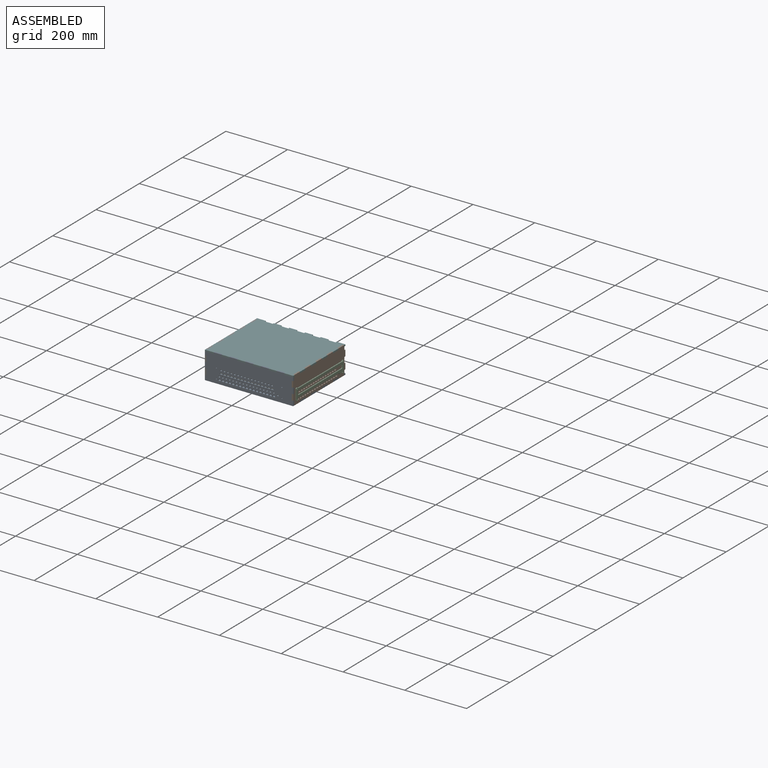
[diagram: assembled view]
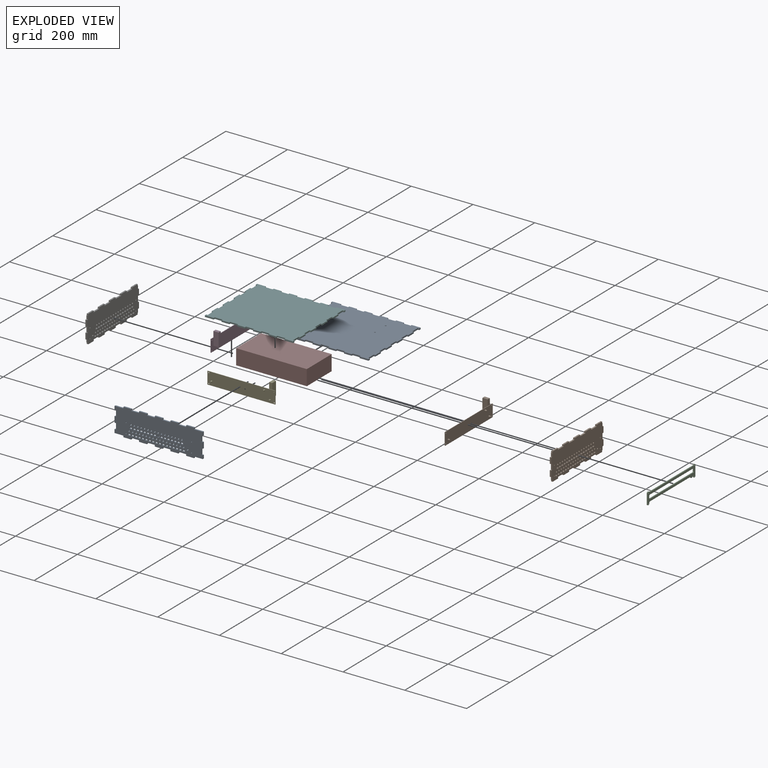
[diagram: exploded view]
GUIDED TOUR — MATED ASSEMBLY (Onshape document acc4b3c0ff918c68003eef7a, AutoMate assembly acc4b3c0ff918c68003eef7a_37771988faa3b58f72059277_893549a14eb29897f5967f4f_default)

This assembly has 10 components, labeled P0..P9 below (a component is one placed occurrence of a part; the same part can appear more than once), held together by 9 mates. A mate is a constraint between two components; its type names the relative motion it leaves free:
  FASTENED — locks the two components together rigidly (no relative motion).
Axis/direction vectors are unit vectors and 'through' points are millimeter coordinates, both in the assembly's world frame.

MATES
  1. FASTENED "Fastened 9": P1 <-> P2, direction (1.000, 0.000, 0.000) through (142.87, -105.95, 40.74) mm
  2. FASTENED "Fastened 8": P8 <-> P5, direction (1.000, 0.000, 0.000) through (-88.91, -118.22, 81.76) mm
  3. FASTENED "Fastened 6": P6 <-> P8, direction (0.000, 0.000, 1.000) through (-140.50, -118.22, 68.26) mm
  4. FASTENED "Fastened 4": P6 <-> P3, direction (1.000, 0.000, 0.000) through (-138.12, 106.05, 8.74) mm
  5. FASTENED "Fastened 2": P0 <-> P6, direction (0.000, -1.000, 0.000) through (-140.50, -88.85, -2.38) mm
  6. FASTENED "Fastened 3": P7 <-> P0, direction (0.000, 0.000, -1.000) through (60.26, 77.09, 0.00) mm
  7. FASTENED "Fastened 1": P0 <-> P1, direction (0.000, -1.000, 0.000) through (140.49, -88.85, -2.38) mm
  8. FASTENED "Fastened 7": P8 <-> P4, direction (0.000, 1.000, 0.000) through (106.09, -115.84, 40.74) mm
  9. FASTENED "Fastened 5": P9 <-> P1, direction (1.000, 0.000, 0.000) through (132.10, 106.05, 8.74) mm

ASSEMBLY ORDER
  1. P7 — the base component [order verified]
  2. P4 [order verified]
  3. P3 [order verified]
  4. P6 [order verified]
  5. P8 [order verified]
  6. P5 [order verified]
  7. P9 [order verified]
  8. P1 [order verified]
  9. P0 [order verified]
  10. P2 [order verified]
Order-tag legend:
  [order verified] — this step's position reverses a verified removal order: the component was checked to insert without passing through the ones already placed.

Of the 10 components, 4 carry the full construction recipe — the FeatureScript program that regenerates the part's solid from scratch; the rest are supplied as boundary geometry only.
Each toured component is shown spotlighted twice — in the assembled view, then in the exploded view, where a leader line traces a displaced component back to its assembled socket (saturated green if recipe-attached, orange if geometry-only; every other component desaturated gray) — followed by its recipe or geometry summary and the mates that hold it.
NOTE — this tour is split across 2 documents so each fits a 32k-token context. This is document 1: the component sections continue in the remaining 1 document, each repeating the header above.
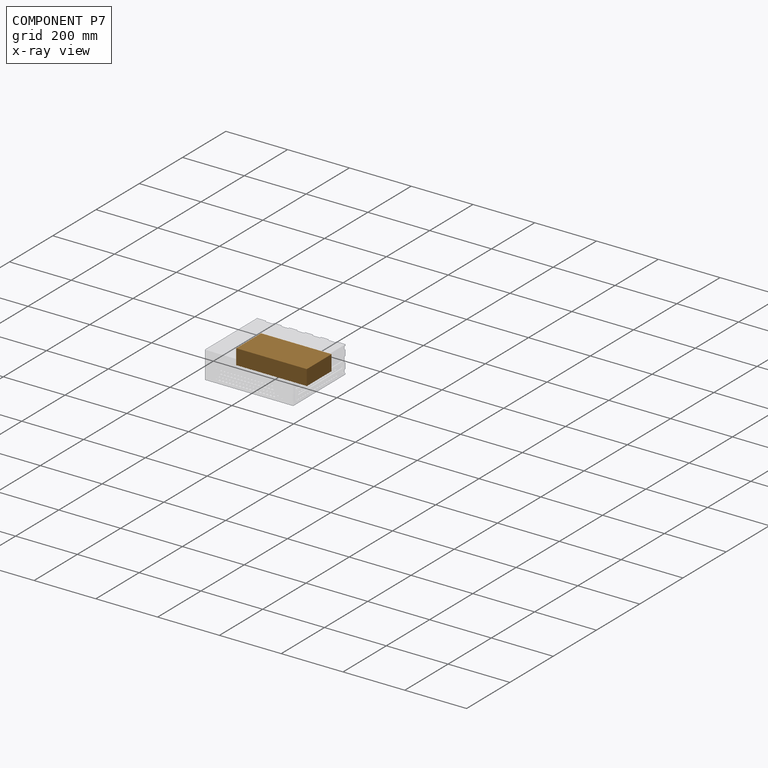
[diagram: component P7 — x-ray view]
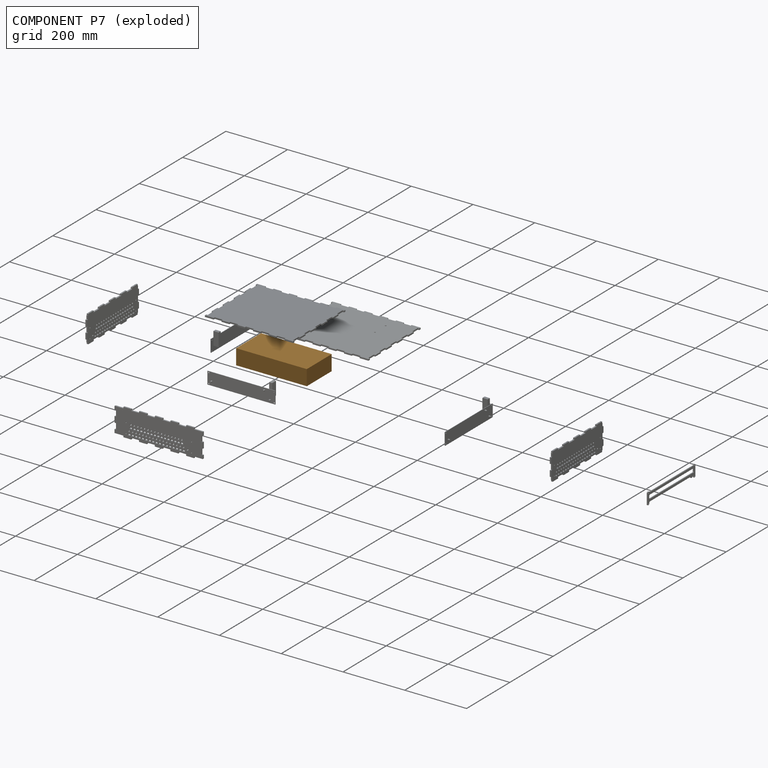
[diagram: component P7 — exploded]
COMPONENT P7 — geometry summary (no construction recipe available for this part):
  bounding box: 228.6 x 115.0 x 50.0 mm
  B-rep topology: 1 solid, 14 faces, 48 edges
  volume: 1314199 mm^3 (100% of its bounding box)
  symmetry: mirror-symmetric across its y mid-plane
Held by: FASTENED mate "Fastened 3" to P0.
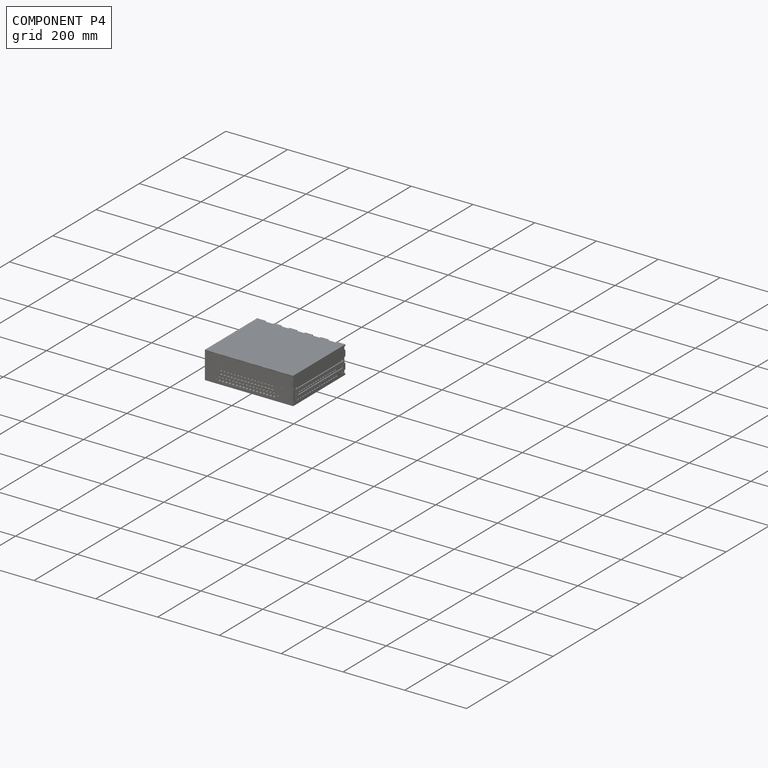
[diagram: component P4 — assembled]
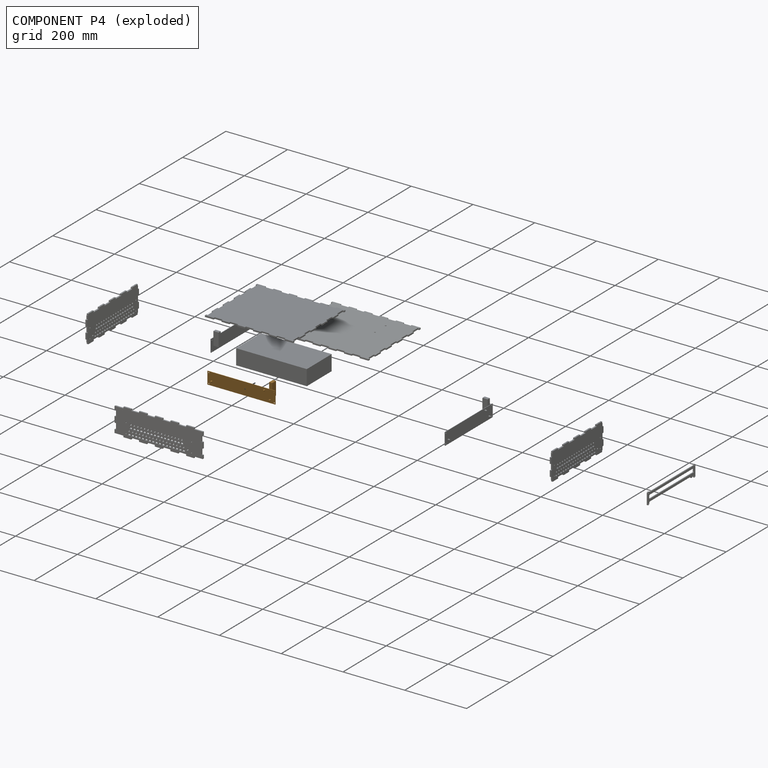
[diagram: component P4 — exploded]
COMPONENT P4 — geometry summary (no construction recipe available for this part):
  bounding box: 220.0 x 59.5 x 24.9 mm
  B-rep topology: 1 solid, 22 faces, 98 edges
  volume: 21492 mm^3 (7% of its bounding box)
Held by: FASTENED mate "Fastened 7" to P8.
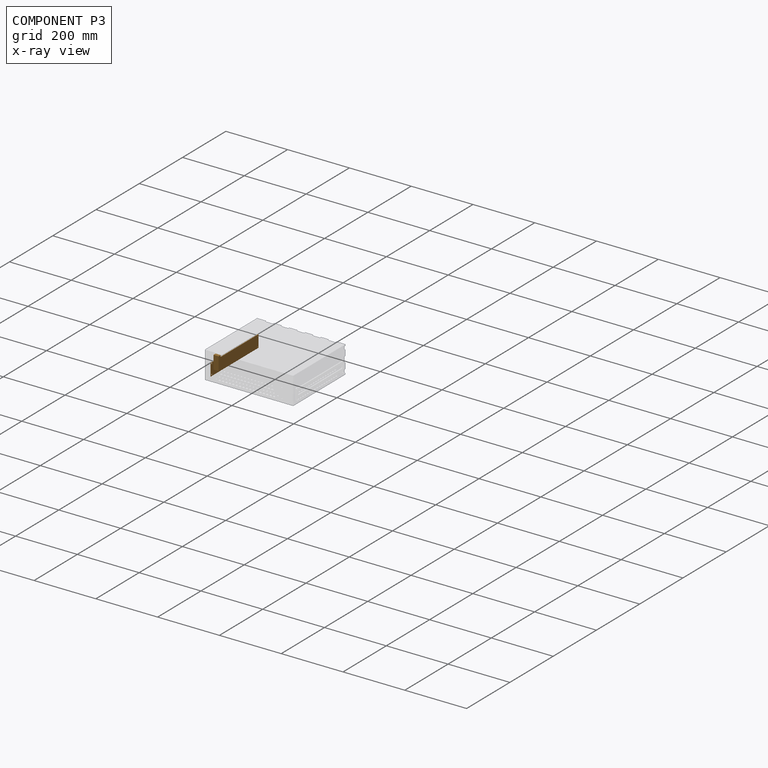
[diagram: component P3 — x-ray view]
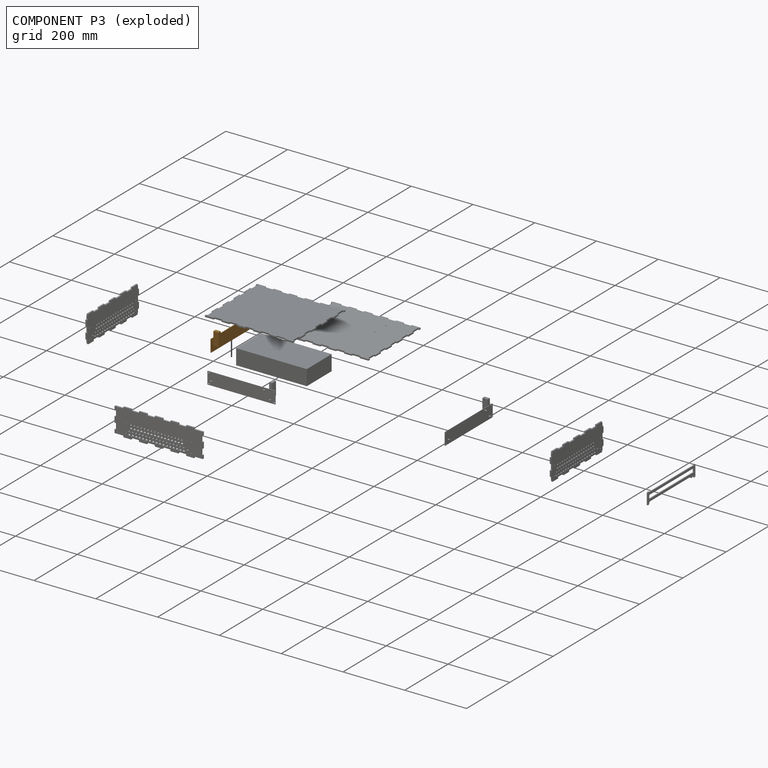
[diagram: component P3 — exploded]
COMPONENT P3 — geometry summary (no construction recipe available for this part):
  bounding box: 220.0 x 59.5 x 24.9 mm
  B-rep topology: 1 solid, 22 faces, 98 edges
  volume: 21492 mm^3 (7% of its bounding box)
Held by: FASTENED mate "Fastened 4" to P6.
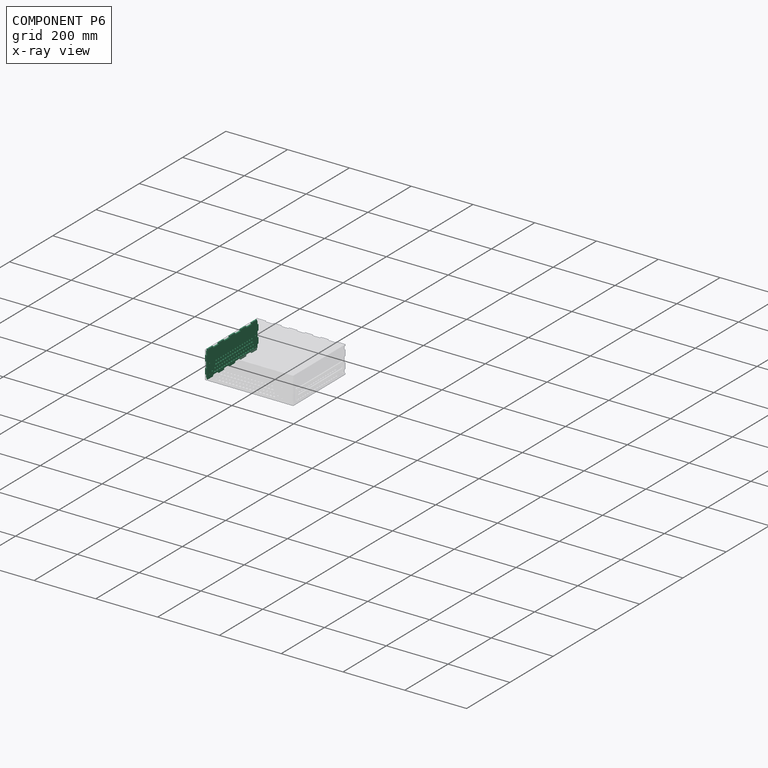
[diagram: component P6 — x-ray view]
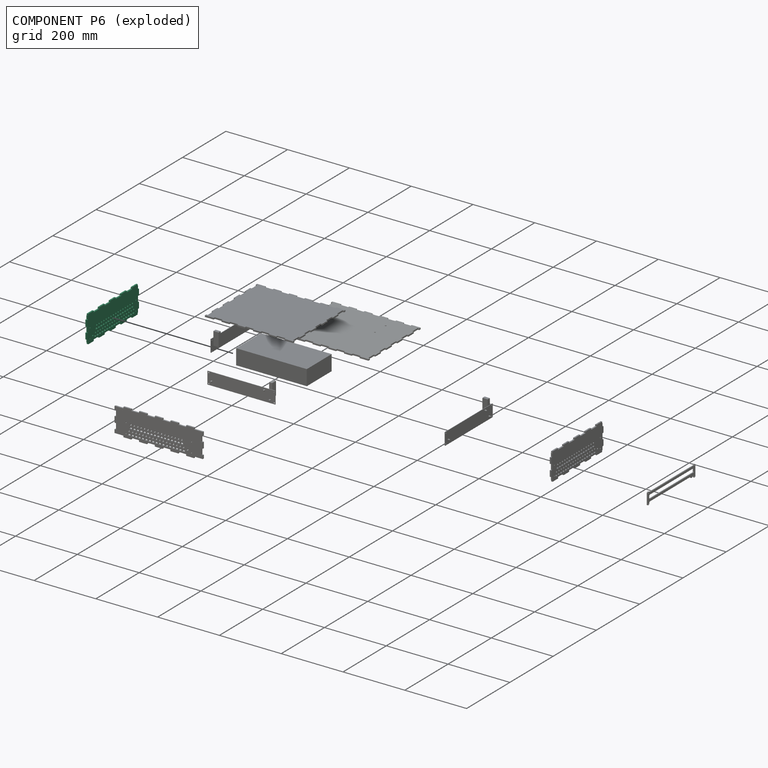
[diagram: component P6 — exploded]
COMPONENT P6 — same part as P1 (CADFS 00529994); its construction recipe is shown at P1.
Held by: FASTENED mate "Fastened 6" to P8; FASTENED mate "Fastened 4" to P3; FASTENED mate "Fastened 2" to P0.
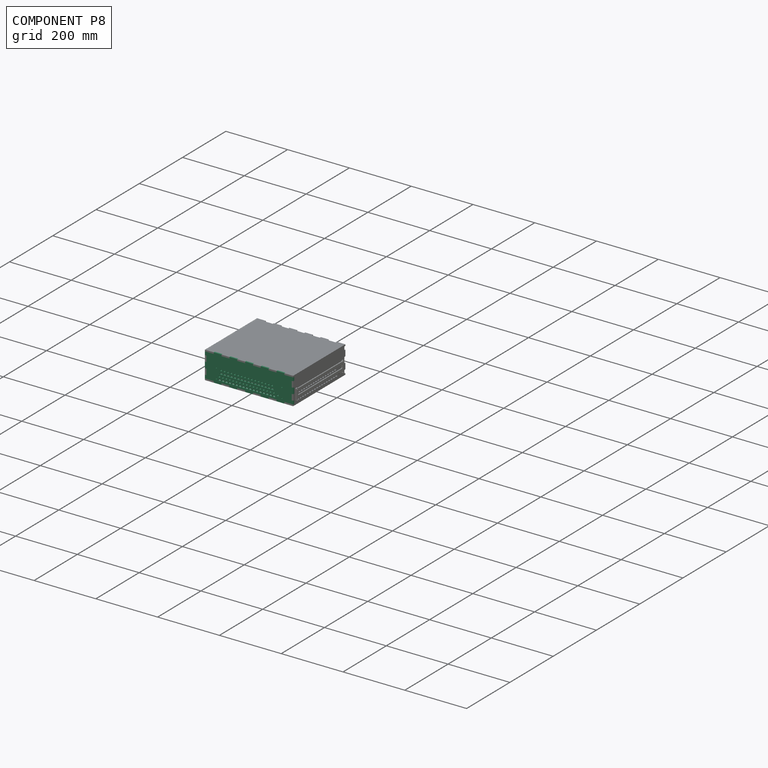
[diagram: component P8 — assembled]
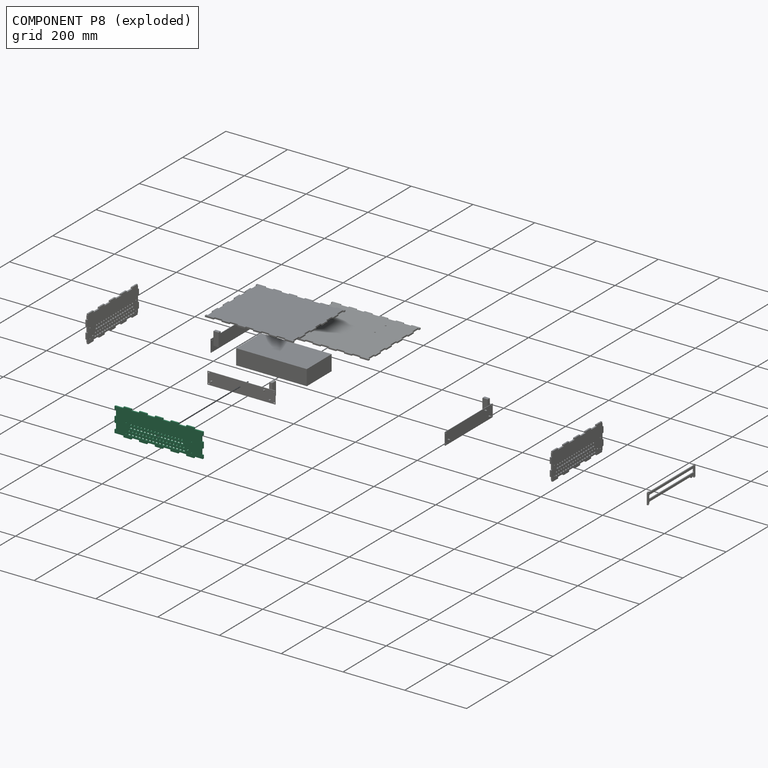
[diagram: component P8 — exploded]
COMPONENT P8 — recipe-attached (CADFS 00529996, mesh-verified: the recipe's output STEP matches this component's geometry to below the mesh-comparison resolution (tessellation chordal tolerance ~0.449 mm)).
Held by: FASTENED mate "Fastened 8" to P5; FASTENED mate "Fastened 6" to P6; FASTENED mate "Fastened 7" to P4.
Construction recipe (FeatureScript — the CAD program that rebuilds this solid; sketch coordinates are in the units given by the * unit suffixes, e.g. mm):

FeatureScript 1511;
import(path : "onshape/std/geometry.fs", version : "1511.0");
import(path : "onshape/std/common.fs", version : "1511.0");
const mm = millimeter;
const VERTEX = EntityType.VERTEX;
const EDGE = EntityType.EDGE;
const FACE = EntityType.FACE;
const BODY = EntityType.BODY;
function v(x, y){return vector(x, y);}
function OD(order){return orderDisambiguation(order);}
function OSD(set){return originalSetDisambiguation(set);}
function TD(topology){return topologyDisambiguation(topology);}
function TDD(query){return trueDependencyDisambiguation(query);}
function sQuery(a, b, c) {return sketchEntityQuery(a, b, c);}

annotation { "Feature Type Name" : "Feature", "Feature Type Description" : "" }
export const myFeature = defineFeature(function(context is Context, id is Id, definition is map)
    precondition{}
    {
        {
            var Q0;
            Q0=qCreatedBy(makeId("Top.planeOp"),FACE);
            var sketch = newSketch(context, id + "F0", { "sketchPlane" : qUnion([Q0])});
            skLineSegment(sketch, "E0.bottom", {"start": v(-142.87, 44.45) * mm, "end": v(142.88, 44.45) * mm});
            skLineSegment(sketch, "E0.top", {"start": v(-142.87, -44.45) * mm, "end": v(142.87, -44.45) * mm});
            skLineSegment(sketch, "E0.left", {"start": v(-142.88, 44.45) * mm, "end": v(-142.88, -44.45) * mm});
            skLineSegment(sketch, "E0.right", {"start": v(142.88, 44.45) * mm, "end": v(142.88, -44.45) * mm});
            skPoint(sketch, "E0.middle", {"position": v(0, 0) * mm});
            skSolve(sketch);
        }
        {
            var Q0;
            Q0 = qSketchRegion(id + "F0", true);
            extrude(context, id + "F1", {"entities" : qUnion([Q0]), "depth" : 4.76 * mm, "offsetDistance" : 25.4 * mm});
        }
        {
            var Q0;
            Q0=makeQuery(id+"F1.opExtrude","CAP_FACE",FACE,{"disambiguationData":[OSD([sQuery(id+"F0.wireOp",EDGE,"E0.bottom"),sQuery(id+"F0.wireOp",EDGE,"E0.top"),sQuery(id+"F0.wireOp",EDGE,"E0.left"),sQuery(id+"F0.wireOp",EDGE,"E0.right")])],"isStart":false});
            var sketch = newSketch(context, id + "F2", { "sketchPlane" : qUnion([Q0])});
            skLineSegment(sketch, "E1", {"start": v(-110, 44.45) * mm, "end": v(-110, -44.45) * mm, "construction": true});
            skCircle(sketch, "E2", {"center": v(-96, -21.95) * mm, "radius": 2.6 * mm});
            skCircle(sketch, "E3.1.0.0", {"center": v(-85, -21.95) * mm, "radius": 2.6 * mm});
            skCircle(sketch, "E3.2.0.0", {"center": v(-74, -21.95) * mm, "radius": 2.6 * mm});
            skCircle(sketch, "E3.3.0.0", {"center": v(-63, -21.95) * mm, "radius": 2.6 * mm});
            skCircle(sketch, "E3.4.0.0", {"center": v(-52, -21.95) * mm, "radius": 2.6 * mm});
            skCircle(sketch, "E3.5.0.0", {"center": v(-41, -21.95) * mm, "radius": 2.6 * mm});
            skCircle(sketch, "E3.6.0.0", {"center": v(-30, -21.95) * mm, "radius": 2.6 * mm});
            skCircle(sketch, "E3.7.0.0", {"center": v(-19, -21.95) * mm, "radius": 2.6 * mm});
            skCircle(sketch, "E3.8.0.0", {"center": v(-8, -21.95) * mm, "radius": 2.6 * mm});
            skCircle(sketch, "E3.9.0.0", {"center": v(3, -21.95) * mm, "radius": 2.6 * mm});
            skCircle(sketch, "E3.10.0.0", {"center": v(14, -21.95) * mm, "radius": 2.6 * mm});
            skCircle(sketch, "E3.11.0.0", {"center": v(25, -21.95) * mm, "radius": 2.6 * mm});
            skCircle(sketch, "E3.12.0.0", {"center": v(36, -21.95) * mm, "radius": 2.6 * mm});
            skCircle(sketch, "E3.13.0.0", {"center": v(47, -21.95) * mm, "radius": 2.6 * mm});
            skCircle(sketch, "E3.14.0.0", {"center": v(58, -21.95) * mm, "radius": 2.6 * mm});
            skCircle(sketch, "E3.15.0.0", {"center": v(69, -21.95) * mm, "radius": 2.6 * mm});
            skCircle(sketch, "E3.16.0.0", {"center": v(80, -21.95) * mm, "radius": 2.6 * mm});
            skLineSegment(sketch, "E3.direction1", {"start": v(-96, -21.95) * mm, "end": v(-85, -21.95) * mm, "construction": true});
            skCircle(sketch, "E4", {"center": v(-90.5, -1.95) * mm, "radius": 2.6 * mm});
            skCircle(sketch, "E5.1.0.0", {"center": v(-79.5, -1.95) * mm, "radius": 2.6 * mm});
            skCircle(sketch, "E5.2.0.0", {"center": v(-68.5, -1.95) * mm, "radius": 2.6 * mm});
            skCircle(sketch, "E5.3.0.0", {"center": v(-57.5, -1.95) * mm, "radius": 2.6 * mm});
            skCircle(sketch, "E5.4.0.0", {"center": v(-46.5, -1.95) * mm, "radius": 2.6 * mm});
            skCircle(sketch, "E5.5.0.0", {"center": v(-35.5, -1.95) * mm, "radius": 2.6 * mm});
            skCircle(sketch, "E5.6.0.0", {"center": v(-24.5, -1.95) * mm, "radius": 2.6 * mm});
            skCircle(sketch, "E5.7.0.0", {"center": v(-13.5, -1.95) * mm, "radius": 2.6 * mm});
            skCircle(sketch, "E5.8.0.0", {"center": v(-2.5, -1.95) * mm, "radius": 2.6 * mm});
            skCircle(sketch, "E5.9.0.0", {"center": v(8.5, -1.95) * mm, "radius": 2.6 * mm});
            skCircle(sketch, "E5.10.0.0", {"center": v(19.5, -1.95) * mm, "radius": 2.6 * mm});
            skCircle(sketch, "E5.11.0.0", {"center": v(30.5, -1.95) * mm, "radius": 2.6 * mm});
            skCircle(sketch, "E5.12.0.0", {"center": v(41.5, -1.95) * mm, "radius": 2.6 * mm});
            skCircle(sketch, "E5.13.0.0", {"center": v(52.5, -1.95) * mm, "radius": 2.6 * mm});
            skCircle(sketch, "E5.14.0.0", {"center": v(63.5, -1.95) * mm, "radius": 2.6 * mm});
            skCircle(sketch, "E5.15.0.0", {"center": v(74.5, -1.95) * mm, "radius": 2.6 * mm});
            skLineSegment(sketch, "E5.direction1", {"start": v(-90.5, -1.95) * mm, "end": v(-79.5, -1.95) * mm, "construction": true});
            skCircle(sketch, "E6", {"center": v(93, -25.95) * mm, "radius": 2.6 * mm});
            skSolve(sketch);
        }
        {
            var Q0;
            Q0 = qSketchRegion(id + "F2", true);
            extrude(context, id + "F3", {"entities" : qUnion([Q0]), "operationType" : NewBodyOperationType.REMOVE, "oppositeDirection" : true, "depth" : 25.4 * mm, "offsetDistance" : 25.4 * mm});
        }
        {
            var Q0;
            Q0=makeQuery(id+"F1.opExtrude","CAP_FACE",FACE,{"disambiguationData":[OSD([sQuery(id+"F0.wireOp",EDGE,"E0.bottom"),sQuery(id+"F0.wireOp",EDGE,"E0.top"),sQuery(id+"F0.wireOp",EDGE,"E0.left"),sQuery(id+"F0.wireOp",EDGE,"E0.right")])],"isStart":false});
            var sketch = newSketch(context, id + "F4", { "sketchPlane" : qUnion([Q0])});
            skLineSegment(sketch, "E7", {"start": v(-96, -21.95) * mm, "end": v(-96, -30.45) * mm, "construction": true});
            skLineSegment(sketch, "E8.bottom", {"start": v(-100.25, -30.41) * mm, "end": v(-91.75, -30.41) * mm});
            skLineSegment(sketch, "E8.top", {"start": v(-100.25, -34.41) * mm, "end": v(-91.75, -34.41) * mm});
            skLineSegment(sketch, "E8.left", {"start": v(-100.25, -30.41) * mm, "end": v(-100.25, -34.41) * mm});
            skLineSegment(sketch, "E8.right", {"start": v(-91.75, -30.41) * mm, "end": v(-91.75, -34.41) * mm});
            skLineSegment(sketch, "E9", {"start": v(-96, -30.41) * mm, "end": v(-96, -34.41) * mm, "construction": true});
            skLineSegment(sketch, "E10", {"start": v(-96, -34.41) * mm, "end": v(-96, -32.41) * mm, "construction": true});
            skLineSegment(sketch, "E11", {"start": v(-96, -32.41) * mm, "end": v(-100.25, -32.41) * mm, "construction": true});
            skLineSegment(sketch, "E12.1.0.0", {"start": v(-85, -34.41) * mm, "end": v(-85, -32.41) * mm, "construction": true});
            skLineSegment(sketch, "E12.1.0.1", {"start": v(-89.25, -30.41) * mm, "end": v(-80.75, -30.41) * mm});
            skLineSegment(sketch, "E12.1.0.2", {"start": v(-89.25, -30.41) * mm, "end": v(-89.25, -34.41) * mm});
            skLineSegment(sketch, "E12.1.0.3", {"start": v(-89.25, -34.41) * mm, "end": v(-80.75, -34.41) * mm});
            skLineSegment(sketch, "E12.1.0.4", {"start": v(-80.75, -30.41) * mm, "end": v(-80.75, -34.41) * mm});
            skLineSegment(sketch, "E12.2.0.0", {"start": v(-74, -34.41) * mm, "end": v(-74, -32.41) * mm, "construction": true});
            skLineSegment(sketch, "E12.2.0.1", {"start": v(-78.25, -30.41) * mm, "end": v(-69.75, -30.41) * mm});
            skLineSegment(sketch, "E12.2.0.2", {"start": v(-78.25, -30.41) * mm, "end": v(-78.25, -34.41) * mm});
            skLineSegment(sketch, "E12.2.0.3", {"start": v(-78.25, -34.41) * mm, "end": v(-69.75, -34.41) * mm});
            skLineSegment(sketch, "E12.2.0.4", {"start": v(-69.75, -30.41) * mm, "end": v(-69.75, -34.41) * mm});
            skLineSegment(sketch, "E12.3.0.0", {"start": v(-63, -34.41) * mm, "end": v(-63, -32.41) * mm, "construction": true});
            skLineSegment(sketch, "E12.3.0.1", {"start": v(-67.25, -30.41) * mm, "end": v(-58.75, -30.41) * mm});
            skLineSegment(sketch, "E12.3.0.2", {"start": v(-67.25, -30.41) * mm, "end": v(-67.25, -34.41) * mm});
            skLineSegment(sketch, "E12.3.0.3", {"start": v(-67.25, -34.41) * mm, "end": v(-58.75, -34.41) * mm});
            skLineSegment(sketch, "E12.3.0.4", {"start": v(-58.75, -30.41) * mm, "end": v(-58.75, -34.41) * mm});
            skLineSegment(sketch, "E12.4.0.0", {"start": v(-52, -34.41) * mm, "end": v(-52, -32.41) * mm, "construction": true});
            skLineSegment(sketch, "E12.4.0.1", {"start": v(-56.25, -30.41) * mm, "end": v(-47.75, -30.41) * mm});
            skLineSegment(sketch, "E12.4.0.2", {"start": v(-56.25, -30.41) * mm, "end": v(-56.25, -34.41) * mm});
            skLineSegment(sketch, "E12.4.0.3", {"start": v(-56.25, -34.41) * mm, "end": v(-47.75, -34.41) * mm});
            skLineSegment(sketch, "E12.4.0.4", {"start": v(-47.75, -30.41) * mm, "end": v(-47.75, -34.41) * mm});
            skLineSegment(sketch, "E12.5.0.0", {"start": v(-41, -34.41) * mm, "end": v(-41, -32.41) * mm, "construction": true});
            skLineSegment(sketch, "E12.5.0.1", {"start": v(-45.25, -30.41) * mm, "end": v(-36.75, -30.41) * mm});
            skLineSegment(sketch, "E12.5.0.2", {"start": v(-45.25, -30.41) * mm, "end": v(-45.25, -34.41) * mm});
            skLineSegment(sketch, "E12.5.0.3", {"start": v(-45.25, -34.41) * mm, "end": v(-36.75, -34.41) * mm});
            skLineSegment(sketch, "E12.5.0.4", {"start": v(-36.75, -30.41) * mm, "end": v(-36.75, -34.41) * mm});
            skLineSegment(sketch, "E12.6.0.0", {"start": v(-30, -34.41) * mm, "end": v(-30, -32.41) * mm, "construction": true});
            skLineSegment(sketch, "E12.6.0.1", {"start": v(-34.25, -30.41) * mm, "end": v(-25.75, -30.41) * mm});
            skLineSegment(sketch, "E12.6.0.2", {"start": v(-34.25, -30.41) * mm, "end": v(-34.25, -34.41) * mm});
            skLineSegment(sketch, "E12.6.0.3", {"start": v(-34.25, -34.41) * mm, "end": v(-25.75, -34.41) * mm});
            skLineSegment(sketch, "E12.6.0.4", {"start": v(-25.75, -30.41) * mm, "end": v(-25.75, -34.41) * mm});
            skLineSegment(sketch, "E12.7.0.0", {"start": v(-19, -34.41) * mm, "end": v(-19, -32.41) * mm, "construction": true});
            skLineSegment(sketch, "E12.7.0.1", {"start": v(-23.25, -30.41) * mm, "end": v(-14.75, -30.41) * mm});
            skLineSegment(sketch, "E12.7.0.2", {"start": v(-23.25, -30.41) * mm, "end": v(-23.25, -34.41) * mm});
            skLineSegment(sketch, "E12.7.0.3", {"start": v(-23.25, -34.41) * mm, "end": v(-14.75, -34.41) * mm});
            skLineSegment(sketch, "E12.7.0.4", {"start": v(-14.75, -30.41) * mm, "end": v(-14.75, -34.41) * mm});
            skLineSegment(sketch, "E12.8.0.0", {"start": v(-8, -34.41) * mm, "end": v(-8, -32.41) * mm, "construction": true});
            skLineSegment(sketch, "E12.8.0.1", {"start": v(-12.25, -30.41) * mm, "end": v(-3.75, -30.41) * mm});
            skLineSegment(sketch, "E12.8.0.2", {"start": v(-12.25, -30.41) * mm, "end": v(-12.25, -34.41) * mm});
            skLineSegment(sketch, "E12.8.0.3", {"start": v(-12.25, -34.41) * mm, "end": v(-3.75, -34.41) * mm});
            skLineSegment(sketch, "E12.8.0.4", {"start": v(-3.75, -30.41) * mm, "end": v(-3.75, -34.41) * mm});
            skLineSegment(sketch, "E12.9.0.0", {"start": v(3, -34.41) * mm, "end": v(3, -32.41) * mm, "construction": true});
            skLineSegment(sketch, "E12.9.0.1", {"start": v(-1.25, -30.41) * mm, "end": v(7.25, -30.41) * mm});
            skLineSegment(sketch, "E12.9.0.2", {"start": v(-1.25, -30.41) * mm, "end": v(-1.25, -34.41) * mm});
            skLineSegment(sketch, "E12.9.0.3", {"start": v(-1.25, -34.41) * mm, "end": v(7.25, -34.41) * mm});
            skLineSegment(sketch, "E12.9.0.4", {"start": v(7.25, -30.41) * mm, "end": v(7.25, -34.41) * mm});
            skLineSegment(sketch, "E12.10.0.0", {"start": v(14, -34.41) * mm, "end": v(14, -32.41) * mm, "construction": true});
            skLineSegment(sketch, "E12.10.0.1", {"start": v(9.75, -30.41) * mm, "end": v(18.25, -30.41) * mm});
            skLineSegment(sketch, "E12.10.0.2", {"start": v(9.75, -30.41) * mm, "end": v(9.75, -34.41) * mm});
            skLineSegment(sketch, "E12.10.0.3", {"start": v(9.75, -34.41) * mm, "end": v(18.25, -34.41) * mm});
            skLineSegment(sketch, "E12.10.0.4", {"start": v(18.25, -30.41) * mm, "end": v(18.25, -34.41) * mm});
            skLineSegment(sketch, "E12.11.0.0", {"start": v(25, -34.41) * mm, "end": v(25, -32.41) * mm, "construction": true});
            skLineSegment(sketch, "E12.11.0.1", {"start": v(20.75, -30.41) * mm, "end": v(29.25, -30.41) * mm});
            skLineSegment(sketch, "E12.11.0.2", {"start": v(20.75, -30.41) * mm, "end": v(20.75, -34.41) * mm});
            skLineSegment(sketch, "E12.11.0.3", {"start": v(20.75, -34.41) * mm, "end": v(29.25, -34.41) * mm});
            skLineSegment(sketch, "E12.11.0.4", {"start": v(29.25, -30.41) * mm, "end": v(29.25, -34.41) * mm});
            skLineSegment(sketch, "E12.12.0.0", {"start": v(36, -34.41) * mm, "end": v(36, -32.41) * mm, "construction": true});
            skLineSegment(sketch, "E12.12.0.1", {"start": v(31.75, -30.41) * mm, "end": v(40.25, -30.41) * mm});
            skLineSegment(sketch, "E12.12.0.2", {"start": v(31.75, -30.41) * mm, "end": v(31.75, -34.41) * mm});
            skLineSegment(sketch, "E12.12.0.3", {"start": v(31.75, -34.41) * mm, "end": v(40.25, -34.41) * mm});
            skLineSegment(sketch, "E12.12.0.4", {"start": v(40.25, -30.41) * mm, "end": v(40.25, -34.41) * mm});
            skLineSegment(sketch, "E12.13.0.0", {"start": v(47, -34.41) * mm, "end": v(47, -32.41) * mm, "construction": true});
            skLineSegment(sketch, "E12.13.0.1", {"start": v(42.75, -30.41) * mm, "end": v(51.25, -30.41) * mm});
            skLineSegment(sketch, "E12.13.0.2", {"start": v(42.75, -30.41) * mm, "end": v(42.75, -34.41) * mm});
            skLineSegment(sketch, "E12.13.0.3", {"start": v(42.75, -34.41) * mm, "end": v(51.25, -34.41) * mm});
            skLineSegment(sketch, "E12.13.0.4", {"start": v(51.25, -30.41) * mm, "end": v(51.25, -34.41) * mm});
            skLineSegment(sketch, "E12.14.0.0", {"start": v(58, -34.41) * mm, "end": v(58, -32.41) * mm, "construction": true});
            skLineSegment(sketch, "E12.14.0.1", {"start": v(53.75, -30.41) * mm, "end": v(62.25, -30.41) * mm});
            skLineSegment(sketch, "E12.14.0.2", {"start": v(53.75, -30.41) * mm, "end": v(53.75, -34.41) * mm});
            skLineSegment(sketch, "E12.14.0.3", {"start": v(53.75, -34.41) * mm, "end": v(62.25, -34.41) * mm});
            skLineSegment(sketch, "E12.14.0.4", {"start": v(62.25, -30.41) * mm, "end": v(62.25, -34.41) * mm});
            skLineSegment(sketch, "E12.15.0.0", {"start": v(69, -34.41) * mm, "end": v(69, -32.41) * mm, "construction": true});
            skLineSegment(sketch, "E12.15.0.1", {"start": v(64.75, -30.41) * mm, "end": v(73.25, -30.41) * mm});
            skLineSegment(sketch, "E12.15.0.2", {"start": v(64.75, -30.41) * mm, "end": v(64.75, -34.41) * mm});
            skLineSegment(sketch, "E12.15.0.3", {"start": v(64.75, -34.41) * mm, "end": v(73.25, -34.41) * mm});
            skLineSegment(sketch, "E12.15.0.4", {"start": v(73.25, -30.41) * mm, "end": v(73.25, -34.41) * mm});
            skLineSegment(sketch, "E12.16.0.0", {"start": v(80, -34.41) * mm, "end": v(80, -32.41) * mm, "construction": true});
            skLineSegment(sketch, "E12.16.0.1", {"start": v(75.75, -30.41) * mm, "end": v(84.25, -30.41) * mm});
            skLineSegment(sketch, "E12.16.0.2", {"start": v(75.75, -30.41) * mm, "end": v(75.75, -34.41) * mm});
            skLineSegment(sketch, "E12.16.0.3", {"start": v(75.75, -34.41) * mm, "end": v(84.25, -34.41) * mm});
            skLineSegment(sketch, "E12.16.0.4", {"start": v(84.25, -30.41) * mm, "end": v(84.25, -34.41) * mm});
            skLineSegment(sketch, "E12.direction1", {"start": v(-96, -34.41) * mm, "end": v(-85, -34.41) * mm, "construction": true});
            skLineSegment(sketch, "E13", {"start": v(-90.5, -1.95) * mm, "end": v(-90.5, -10.32) * mm, "construction": true});
            skLineSegment(sketch, "E14.bottom", {"start": v(-94.75, -10.41) * mm, "end": v(-86.25, -10.41) * mm});
            skLineSegment(sketch, "E14.top", {"start": v(-94.75, -14.41) * mm, "end": v(-86.25, -14.41) * mm});
            skLineSegment(sketch, "E14.left", {"start": v(-94.75, -10.41) * mm, "end": v(-94.75, -14.41) * mm});
            skLineSegment(sketch, "E14.right", {"start": v(-86.25, -10.41) * mm, "end": v(-86.25, -14.41) * mm});
            skLineSegment(sketch, "E15", {"start": v(-90.5, -10.41) * mm, "end": v(-90.5, -14.41) * mm, "construction": true});
            skLineSegment(sketch, "E16", {"start": v(-90.5, -14.41) * mm, "end": v(-90.5, -12.41) * mm, "construction": true});
            skLineSegment(sketch, "E17", {"start": v(-90.5, -12.41) * mm, "end": v(-94.75, -12.41) * mm, "construction": true});
            skLineSegment(sketch, "E18.1.0.0", {"start": v(-79.5, -10.41) * mm, "end": v(-79.5, -14.41) * mm, "construction": true});
            skLineSegment(sketch, "E18.1.0.1", {"start": v(-83.75, -10.41) * mm, "end": v(-75.25, -10.41) * mm});
            skLineSegment(sketch, "E18.1.0.2", {"start": v(-83.75, -10.41) * mm, "end": v(-83.75, -14.41) * mm});
            skLineSegment(sketch, "E18.1.0.3", {"start": v(-83.75, -14.41) * mm, "end": v(-75.25, -14.41) * mm});
            skLineSegment(sketch, "E18.1.0.4", {"start": v(-75.25, -10.41) * mm, "end": v(-75.25, -14.41) * mm});
            skLineSegment(sketch, "E18.2.0.0", {"start": v(-68.5, -10.41) * mm, "end": v(-68.5, -14.41) * mm, "construction": true});
            skLineSegment(sketch, "E18.2.0.1", {"start": v(-72.75, -10.41) * mm, "end": v(-64.25, -10.41) * mm});
            skLineSegment(sketch, "E18.2.0.2", {"start": v(-72.75, -10.41) * mm, "end": v(-72.75, -14.41) * mm});
            skLineSegment(sketch, "E18.2.0.3", {"start": v(-72.75, -14.41) * mm, "end": v(-64.25, -14.41) * mm});
            skLineSegment(sketch, "E18.2.0.4", {"start": v(-64.25, -10.41) * mm, "end": v(-64.25, -14.41) * mm});
            skLineSegment(sketch, "E18.3.0.0", {"start": v(-57.5, -10.41) * mm, "end": v(-57.5, -14.41) * mm, "construction": true});
            skLineSegment(sketch, "E18.3.0.1", {"start": v(-61.75, -10.41) * mm, "end": v(-53.25, -10.41) * mm});
            skLineSegment(sketch, "E18.3.0.2", {"start": v(-61.75, -10.41) * mm, "end": v(-61.75, -14.41) * mm});
            skLineSegment(sketch, "E18.3.0.3", {"start": v(-61.75, -14.41) * mm, "end": v(-53.25, -14.41) * mm});
            skLineSegment(sketch, "E18.3.0.4", {"start": v(-53.25, -10.41) * mm, "end": v(-53.25, -14.41) * mm});
            skLineSegment(sketch, "E18.4.0.0", {"start": v(-46.5, -10.41) * mm, "end": v(-46.5, -14.41) * mm, "construction": true});
            skLineSegment(sketch, "E18.4.0.1", {"start": v(-50.75, -10.41) * mm, "end": v(-42.25, -10.41) * mm});
            skLineSegment(sketch, "E18.4.0.2", {"start": v(-50.75, -10.41) * mm, "end": v(-50.75, -14.41) * mm});
            skLineSegment(sketch, "E18.4.0.3", {"start": v(-50.75, -14.41) * mm, "end": v(-42.25, -14.41) * mm});
            skLineSegment(sketch, "E18.4.0.4", {"start": v(-42.25, -10.41) * mm, "end": v(-42.25, -14.41) * mm});
            skLineSegment(sketch, "E18.5.0.0", {"start": v(-35.5, -10.41) * mm, "end": v(-35.5, -14.41) * mm, "construction": true});
            skLineSegment(sketch, "E18.5.0.1", {"start": v(-39.75, -10.41) * mm, "end": v(-31.25, -10.41) * mm});
            skLineSegment(sketch, "E18.5.0.2", {"start": v(-39.75, -10.41) * mm, "end": v(-39.75, -14.41) * mm});
            skLineSegment(sketch, "E18.5.0.3", {"start": v(-39.75, -14.41) * mm, "end": v(-31.25, -14.41) * mm});
            skLineSegment(sketch, "E18.5.0.4", {"start": v(-31.25, -10.41) * mm, "end": v(-31.25, -14.41) * mm});
            skLineSegment(sketch, "E18.6.0.0", {"start": v(-24.5, -10.41) * mm, "end": v(-24.5, -14.41) * mm, "construction": true});
            skLineSegment(sketch, "E18.6.0.1", {"start": v(-28.75, -10.41) * mm, "end": v(-20.25, -10.41) * mm});
            skLineSegment(sketch, "E18.6.0.2", {"start": v(-28.75, -10.41) * mm, "end": v(-28.75, -14.41) * mm});
            skLineSegment(sketch, "E18.6.0.3", {"start": v(-28.75, -14.41) * mm, "end": v(-20.25, -14.41) * mm});
            skLineSegment(sketch, "E18.6.0.4", {"start": v(-20.25, -10.41) * mm, "end": v(-20.25, -14.41) * mm});
            skLineSegment(sketch, "E18.7.0.0", {"start": v(-13.5, -10.41) * mm, "end": v(-13.5, -14.41) * mm, "construction": true});
            skLineSegment(sketch, "E18.7.0.1", {"start": v(-17.75, -10.41) * mm, "end": v(-9.25, -10.41) * mm});
            skLineSegment(sketch, "E18.7.0.2", {"start": v(-17.75, -10.41) * mm, "end": v(-17.75, -14.41) * mm});
            skLineSegment(sketch, "E18.7.0.3", {"start": v(-17.75, -14.41) * mm, "end": v(-9.25, -14.41) * mm});
            skLineSegment(sketch, "E18.7.0.4", {"start": v(-9.25, -10.41) * mm, "end": v(-9.25, -14.41) * mm});
            skLineSegment(sketch, "E18.8.0.0", {"start": v(-2.5, -10.41) * mm, "end": v(-2.5, -14.41) * mm, "construction": true});
            skLineSegment(sketch, "E18.8.0.1", {"start": v(-6.75, -10.41) * mm, "end": v(1.75, -10.41) * mm});
            skLineSegment(sketch, "E18.8.0.2", {"start": v(-6.75, -10.41) * mm, "end": v(-6.75, -14.41) * mm});
            skLineSegment(sketch, "E18.8.0.3", {"start": v(-6.75, -14.41) * mm, "end": v(1.75, -14.41) * mm});
            skLineSegment(sketch, "E18.8.0.4", {"start": v(1.75, -10.41) * mm, "end": v(1.75, -14.41) * mm});
            skLineSegment(sketch, "E18.9.0.0", {"start": v(8.5, -10.41) * mm, "end": v(8.5, -14.41) * mm, "construction": true});
            skLineSegment(sketch, "E18.9.0.1", {"start": v(4.25, -10.41) * mm, "end": v(12.75, -10.41) * mm});
            skLineSegment(sketch, "E18.9.0.2", {"start": v(4.25, -10.41) * mm, "end": v(4.25, -14.41) * mm});
            skLineSegment(sketch, "E18.9.0.3", {"start": v(4.25, -14.41) * mm, "end": v(12.75, -14.41) * mm});
            skLineSegment(sketch, "E18.9.0.4", {"start": v(12.75, -10.41) * mm, "end": v(12.75, -14.41) * mm});
            skLineSegment(sketch, "E18.10.0.0", {"start": v(19.5, -10.41) * mm, "end": v(19.5, -14.41) * mm, "construction": true});
            skLineSegment(sketch, "E18.10.0.1", {"start": v(15.25, -10.41) * mm, "end": v(23.75, -10.41) * mm});
            skLineSegment(sketch, "E18.10.0.2", {"start": v(15.25, -10.41) * mm, "end": v(15.25, -14.41) * mm});
            skLineSegment(sketch, "E18.10.0.3", {"start": v(15.25, -14.41) * mm, "end": v(23.75, -14.41) * mm});
            skLineSegment(sketch, "E18.10.0.4", {"start": v(23.75, -10.41) * mm, "end": v(23.75, -14.41) * mm});
            skLineSegment(sketch, "E18.11.0.0", {"start": v(30.5, -10.41) * mm, "end": v(30.5, -14.41) * mm, "construction": true});
            skLineSegment(sketch, "E18.11.0.1", {"start": v(26.25, -10.41) * mm, "end": v(34.75, -10.41) * mm});
            skLineSegment(sketch, "E18.11.0.2", {"start": v(26.25, -10.41) * mm, "end": v(26.25, -14.41) * mm});
            skLineSegment(sketch, "E18.11.0.3", {"start": v(26.25, -14.41) * mm, "end": v(34.75, -14.41) * mm});
            skLineSegment(sketch, "E18.11.0.4", {"start": v(34.75, -10.41) * mm, "end": v(34.75, -14.41) * mm});
            skLineSegment(sketch, "E18.12.0.0", {"start": v(41.5, -10.41) * mm, "end": v(41.5, -14.41) * mm, "construction": true});
            skLineSegment(sketch, "E18.12.0.1", {"start": v(37.25, -10.41) * mm, "end": v(45.75, -10.41) * mm});
            skLineSegment(sketch, "E18.12.0.2", {"start": v(37.25, -10.41) * mm, "end": v(37.25, -14.41) * mm});
            skLineSegment(sketch, "E18.12.0.3", {"start": v(37.25, -14.41) * mm, "end": v(45.75, -14.41) * mm});
            skLineSegment(sketch, "E18.12.0.4", {"start": v(45.75, -10.41) * mm, "end": v(45.75, -14.41) * mm});
            skLineSegment(sketch, "E18.13.0.0", {"start": v(52.5, -10.41) * mm, "end": v(52.5, -14.41) * mm, "construction": true});
            skLineSegment(sketch, "E18.13.0.1", {"start": v(48.25, -10.41) * mm, "end": v(56.75, -10.41) * mm});
            skLineSegment(sketch, "E18.13.0.2", {"start": v(48.25, -10.41) * mm, "end": v(48.25, -14.41) * mm});
            skLineSegment(sketch, "E18.13.0.3", {"start": v(48.25, -14.41) * mm, "end": v(56.75, -14.41) * mm});
            skLineSegment(sketch, "E18.13.0.4", {"start": v(56.75, -10.41) * mm, "end": v(56.75, -14.41) * mm});
            skLineSegment(sketch, "E18.14.0.0", {"start": v(63.5, -10.41) * mm, "end": v(63.5, -14.41) * mm, "construction": true});
            skLineSegment(sketch, "E18.14.0.1", {"start": v(59.25, -10.41) * mm, "end": v(67.75, -10.41) * mm});
            skLineSegment(sketch, "E18.14.0.2", {"start": v(59.25, -10.41) * mm, "end": v(59.25, -14.41) * mm});
            skLineSegment(sketch, "E18.14.0.3", {"start": v(59.25, -14.41) * mm, "end": v(67.75, -14.41) * mm});
            skLineSegment(sketch, "E18.14.0.4", {"start": v(67.75, -10.41) * mm, "end": v(67.75, -14.41) * mm});
            skLineSegment(sketch, "E18.15.0.0", {"start": v(74.5, -10.41) * mm, "end": v(74.5, -14.41) * mm, "construction": true});
            skLineSegment(sketch, "E18.15.0.1", {"start": v(70.25, -10.41) * mm, "end": v(78.75, -10.41) * mm});
            skLineSegment(sketch, "E18.15.0.2", {"start": v(70.25, -10.41) * mm, "end": v(70.25, -14.41) * mm});
            skLineSegment(sketch, "E18.15.0.3", {"start": v(70.25, -14.41) * mm, "end": v(78.75, -14.41) * mm});
            skLineSegment(sketch, "E18.15.0.4", {"start": v(78.75, -10.41) * mm, "end": v(78.75, -14.41) * mm});
            skLineSegment(sketch, "E18.direction1", {"start": v(-90.5, -14.41) * mm, "end": v(-79.5, -14.41) * mm, "construction": true});
            skSolve(sketch);
        }
        {
            var Q0;
            Q0 = qSketchRegion(id + "F4", true);
            extrude(context, id + "F5", {"entities" : qUnion([Q0]), "operationType" : NewBodyOperationType.REMOVE, "oppositeDirection" : true, "depth" : 25.4 * mm, "offsetDistance" : 25.4 * mm});
        }
        {
            var Q0;
            Q0=makeQuery(id+"F1.opExtrude","CAP_FACE",FACE,{"disambiguationData":[OSD([sQuery(id+"F0.wireOp",EDGE,"E0.bottom"),sQuery(id+"F0.wireOp",EDGE,"E0.top"),sQuery(id+"F0.wireOp",EDGE,"E0.left"),sQuery(id+"F0.wireOp",EDGE,"E0.right")])],"isStart":false});
            var sketch = newSketch(context, id + "F6", { "sketchPlane" : qUnion([Q0])});
            skLineSegment(sketch, "E19", {"start": v(-109.9, 44.45) * mm, "end": v(-109.9, -44.45) * mm, "construction": true});
            skCircle(sketch, "E20", {"center": v(-105.9, -30.95) * mm, "radius": 1.6 * mm});
            skCircle(sketch, "E21.0", {"center": v(-96, -21.95) * mm, "radius": 2.6 * mm, "construction": true});
            skCircle(sketch, "E22.0.1.0", {"center": v(-105.9, 1.05) * mm, "radius": 1.6 * mm});
            skCircle(sketch, "E22.1.0.0", {"center": v(106.1, -30.95) * mm, "radius": 1.6 * mm});
            skCircle(sketch, "E22.1.1.0", {"center": v(106.1, 1.05) * mm, "radius": 1.6 * mm});
            skLineSegment(sketch, "E22.direction1", {"start": v(-105.9, -30.95) * mm, "end": v(106.1, -30.95) * mm, "construction": true});
            skLineSegment(sketch, "E22.direction2", {"start": v(-105.9, -30.95) * mm, "end": v(-105.9, 1.05) * mm, "construction": true});
            skSolve(sketch);
        }
        {
            var Q0;
            Q0 = qSketchRegion(id + "F6", true);
            extrude(context, id + "F7", {"entities" : qUnion([Q0]), "operationType" : NewBodyOperationType.REMOVE, "oppositeDirection" : true, "depth" : 25.4 * mm, "offsetDistance" : 25.4 * mm});
        }
        {
            var Q0;
            Q0=makeQuery(id+"F1.opExtrude","CAP_FACE",FACE,{"disambiguationData":[OSD([sQuery(id+"F0.wireOp",EDGE,"E0.bottom"),sQuery(id+"F0.wireOp",EDGE,"E0.top"),sQuery(id+"F0.wireOp",EDGE,"E0.left"),sQuery(id+"F0.wireOp",EDGE,"E0.right")])],"isStart":false});
            var sketch = newSketch(context, id + "F8", { "sketchPlane" : qUnion([Q0])});
            skLineSegment(sketch, "E23", {"start": v(0, 0) * mm, "end": v(0, 44.45) * mm, "construction": true});
            skLineSegment(sketch, "E24", {"start": v(-25.4, 44.45) * mm, "end": v(-25.4, 72.92) * mm, "construction": true});
            skLineSegment(sketch, "E25.bottom", {"start": v(-38.1, 44.45) * mm, "end": v(-12.7, 44.45) * mm});
            skLineSegment(sketch, "E25.top", {"start": v(-38.1, 39.69) * mm, "end": v(-12.7, 39.69) * mm});
            skLineSegment(sketch, "E25.left", {"start": v(-38.1, 44.45) * mm, "end": v(-38.1, 39.69) * mm});
            skLineSegment(sketch, "E25.right", {"start": v(-12.7, 44.45) * mm, "end": v(-12.7, 39.69) * mm});
            skLineSegment(sketch, "E26", {"start": v(-25.4, 44.45) * mm, "end": v(-25.4, 39.69) * mm, "construction": true});
            skLineSegment(sketch, "E27.1.0.0", {"start": v(-76.2, 44.45) * mm, "end": v(-76.2, 39.69) * mm, "construction": true});
            skLineSegment(sketch, "E27.1.0.1", {"start": v(-88.9, 44.45) * mm, "end": v(-88.9, 39.69) * mm});
            skLineSegment(sketch, "E27.1.0.2", {"start": v(-88.9, 44.45) * mm, "end": v(-63.5, 44.45) * mm});
            skLineSegment(sketch, "E27.1.0.3", {"start": v(-88.9, 39.69) * mm, "end": v(-63.5, 39.69) * mm});
            skLineSegment(sketch, "E27.1.0.4", {"start": v(-63.5, 44.45) * mm, "end": v(-63.5, 39.69) * mm});
            skLineSegment(sketch, "E27.2.0.0", {"start": v(-127, 44.45) * mm, "end": v(-127, 39.69) * mm, "construction": true});
            skLineSegment(sketch, "E27.2.0.2", {"start": v(-139.7, 44.45) * mm, "end": v(-114.3, 44.45) * mm});
            skLineSegment(sketch, "E27.2.0.3", {"start": v(-139.7, 39.69) * mm, "end": v(-114.3, 39.69) * mm});
            skLineSegment(sketch, "E27.2.0.4", {"start": v(-114.3, 44.45) * mm, "end": v(-114.3, 39.69) * mm});
            skLineSegment(sketch, "E27.direction1", {"start": v(-25.4, 39.69) * mm, "end": v(-76.2, 39.69) * mm, "construction": true});
            skLineSegment(sketch, "E28", {"start": v(-139.7, 44.45) * mm, "end": v(-142.87, 44.45) * mm});
            skLineSegment(sketch, "E29", {"start": v(-139.7, 39.69) * mm, "end": v(-142.88, 39.69) * mm});
            skLineSegment(sketch, "E30", {"start": v(-142.88, 39.69) * mm, "end": v(-142.88, 44.45) * mm});
            skLineSegment(sketch, "E31.MirrorCS", {"start": v(139.7, 44.45) * mm, "end": v(142.88, 44.45) * mm});
            skLineSegment(sketch, "E32.MirrorCS", {"start": v(38.1, 44.45) * mm, "end": v(38.1, 39.69) * mm});
            skLineSegment(sketch, "E33.MirrorCS", {"start": v(12.7, 44.45) * mm, "end": v(12.7, 39.69) * mm});
            skLineSegment(sketch, "E34.MirrorCS", {"start": v(25.4, 44.45) * mm, "end": v(25.4, 39.69) * mm, "construction": true});
            skLineSegment(sketch, "E35.MirrorCS", {"start": v(88.9, 44.45) * mm, "end": v(88.9, 39.69) * mm});
            skLineSegment(sketch, "E36.MirrorCS", {"start": v(139.7, 39.69) * mm, "end": v(142.88, 39.69) * mm});
            skLineSegment(sketch, "E37.MirrorCS", {"start": v(63.5, 44.45) * mm, "end": v(63.5, 39.69) * mm});
            skLineSegment(sketch, "E38.MirrorCS", {"start": v(142.88, 39.69) * mm, "end": v(142.88, 44.45) * mm});
            skLineSegment(sketch, "E39.MirrorCS", {"start": v(114.3, 44.45) * mm, "end": v(114.3, 39.69) * mm});
            skLineSegment(sketch, "E40.MirrorCS", {"start": v(76.2, 44.45) * mm, "end": v(76.2, 39.69) * mm, "construction": true});
            skLineSegment(sketch, "E41.MirrorCS", {"start": v(127, 44.45) * mm, "end": v(127, 39.69) * mm, "construction": true});
            skLineSegment(sketch, "E42.MirrorCS", {"start": v(25.4, 39.69) * mm, "end": v(76.2, 39.69) * mm, "construction": true});
            skLineSegment(sketch, "E43.MirrorCS", {"start": v(38.1, 39.69) * mm, "end": v(12.7, 39.69) * mm});
            skLineSegment(sketch, "E44.MirrorCS", {"start": v(88.9, 44.45) * mm, "end": v(63.5, 44.45) * mm});
            skLineSegment(sketch, "E45.MirrorCS", {"start": v(139.7, 39.69) * mm, "end": v(114.3, 39.69) * mm});
            skLineSegment(sketch, "E46.MirrorCS", {"start": v(38.1, 44.45) * mm, "end": v(12.7, 44.45) * mm});
            skLineSegment(sketch, "E47.MirrorCS", {"start": v(88.9, 39.69) * mm, "end": v(63.5, 39.69) * mm});
            skLineSegment(sketch, "E48.MirrorCS", {"start": v(139.7, 44.45) * mm, "end": v(114.3, 44.45) * mm});
            skLineSegment(sketch, "E49", {"start": v(0, 0) * mm, "end": v(142.88, 0) * mm, "construction": true});
            skLineSegment(sketch, "E50.MirrorCS", {"start": v(88.9, -44.45) * mm, "end": v(88.9, -39.69) * mm});
            skLineSegment(sketch, "E51.MirrorCS", {"start": v(-139.7, -39.69) * mm, "end": v(-142.88, -39.69) * mm});
            skLineSegment(sketch, "E52.MirrorCS", {"start": v(-114.3, -44.45) * mm, "end": v(-114.3, -39.69) * mm});
            skLineSegment(sketch, "E53.MirrorCS", {"start": v(139.7, -39.69) * mm, "end": v(142.88, -39.69) * mm});
            skLineSegment(sketch, "E54.MirrorCS", {"start": v(-38.1, -44.45) * mm, "end": v(-38.1, -39.69) * mm});
            skLineSegment(sketch, "E55.MirrorCS", {"start": v(-12.7, -44.45) * mm, "end": v(-12.7, -39.69) * mm});
            skLineSegment(sketch, "E56.MirrorCS", {"start": v(-25.4, -44.45) * mm, "end": v(-25.4, -39.69) * mm, "construction": true});
            skLineSegment(sketch, "E57.MirrorCS", {"start": v(-88.9, -44.45) * mm, "end": v(-88.9, -39.69) * mm});
            skLineSegment(sketch, "E58.MirrorCS", {"start": v(-139.7, -44.45) * mm, "end": v(-142.87, -44.45) * mm});
            skLineSegment(sketch, "E59.MirrorCS", {"start": v(12.7, -44.45) * mm, "end": v(12.7, -39.69) * mm});
            skLineSegment(sketch, "E60.MirrorCS", {"start": v(38.1, -44.45) * mm, "end": v(38.1, -39.69) * mm});
            skLineSegment(sketch, "E61.MirrorCS", {"start": v(142.88, -39.69) * mm, "end": v(142.88, -44.45) * mm});
            skLineSegment(sketch, "E62.MirrorCS", {"start": v(139.7, -44.45) * mm, "end": v(142.88, -44.45) * mm});
            skLineSegment(sketch, "E63.MirrorCS", {"start": v(63.5, -44.45) * mm, "end": v(63.5, -39.69) * mm});
            skLineSegment(sketch, "E64.MirrorCS", {"start": v(114.3, -44.45) * mm, "end": v(114.3, -39.69) * mm});
            skLineSegment(sketch, "E65.MirrorCS", {"start": v(-142.88, -39.69) * mm, "end": v(-142.88, -44.45) * mm});
            skLineSegment(sketch, "E66.MirrorCS", {"start": v(-63.5, -44.45) * mm, "end": v(-63.5, -39.69) * mm});
            skLineSegment(sketch, "E67.MirrorCS", {"start": v(-76.2, -44.45) * mm, "end": v(-76.2, -39.69) * mm, "construction": true});
            skLineSegment(sketch, "E68.MirrorCS", {"start": v(25.4, -44.45) * mm, "end": v(25.4, -39.69) * mm, "construction": true});
            skLineSegment(sketch, "E69.MirrorCS", {"start": v(38.1, -39.69) * mm, "end": v(12.7, -39.69) * mm});
            skLineSegment(sketch, "E70.MirrorCS", {"start": v(-127, -44.45) * mm, "end": v(-127, -39.69) * mm, "construction": true});
            skLineSegment(sketch, "E71.MirrorCS", {"start": v(76.2, -44.45) * mm, "end": v(76.2, -39.69) * mm, "construction": true});
            skLineSegment(sketch, "E72.MirrorCS", {"start": v(127, -44.45) * mm, "end": v(127, -39.69) * mm, "construction": true});
            skLineSegment(sketch, "E73.MirrorCS", {"start": v(139.7, -39.69) * mm, "end": v(114.3, -39.69) * mm});
            skLineSegment(sketch, "E74.MirrorCS", {"start": v(-139.7, -44.45) * mm, "end": v(-114.3, -44.45) * mm});
            skLineSegment(sketch, "E75.MirrorCS", {"start": v(-139.7, -39.69) * mm, "end": v(-114.3, -39.69) * mm});
            skLineSegment(sketch, "E76.MirrorCS", {"start": v(-38.1, -44.45) * mm, "end": v(-12.7, -44.45) * mm});
            skLineSegment(sketch, "E77.MirrorCS", {"start": v(-38.1, -39.69) * mm, "end": v(-12.7, -39.69) * mm});
            skLineSegment(sketch, "E78.MirrorCS", {"start": v(-88.9, -44.45) * mm, "end": v(-63.5, -44.45) * mm});
            skLineSegment(sketch, "E79.MirrorCS", {"start": v(-88.9, -39.69) * mm, "end": v(-63.5, -39.69) * mm});
            skLineSegment(sketch, "E80.MirrorCS", {"start": v(88.9, -44.45) * mm, "end": v(63.5, -44.45) * mm});
            skLineSegment(sketch, "E81.MirrorCS", {"start": v(-25.4, -39.69) * mm, "end": v(-76.2, -39.69) * mm, "construction": true});
            skLineSegment(sketch, "E82.MirrorCS", {"start": v(25.4, -39.69) * mm, "end": v(76.2, -39.69) * mm, "construction": true});
            skLineSegment(sketch, "E83.MirrorCS", {"start": v(88.9, -39.69) * mm, "end": v(63.5, -39.69) * mm});
            skLineSegment(sketch, "E84.MirrorCS", {"start": v(38.1, -44.45) * mm, "end": v(12.7, -44.45) * mm});
            skLineSegment(sketch, "E85.MirrorCS", {"start": v(139.7, -44.45) * mm, "end": v(114.3, -44.45) * mm});
            skSolve(sketch);
        }
        {
            var Q0;
            Q0 = qSketchRegion(id + "F8", true);
            extrude(context, id + "F9", {"entities" : qUnion([Q0]), "operationType" : NewBodyOperationType.REMOVE, "oppositeDirection" : true, "depth" : 25.4 * mm, "offsetDistance" : 25.4 * mm});
        }
        {
            var Q0;
            Q0=makeQuery(id+"F1.opExtrude","CAP_FACE",FACE,{"disambiguationData":[OSD([sQuery(id+"F0.wireOp",EDGE,"E0.bottom"),sQuery(id+"F0.wireOp",EDGE,"E0.top"),sQuery(id+"F0.wireOp",EDGE,"E0.left"),sQuery(id+"F0.wireOp",EDGE,"E0.right")])],"isStart":false});
            var sketch = newSketch(context, id + "F10", { "sketchPlane" : qUnion([Q0])});
            skLineSegment(sketch, "E86", {"start": v(0, 0) * mm, "end": v(-142.88, 0) * mm, "construction": true});
            skLineSegment(sketch, "E87.direction1", {"start": v(-142.88, 0) * mm, "end": v(-117.47, 0) * mm, "construction": true});
            skLineSegment(sketch, "E88", {"start": v(0, 3.87) * mm, "end": v(0, 44.45) * mm, "construction": true});
            skLineSegment(sketch, "E89", {"start": v(-142.88, 19.05) * mm, "end": v(-181.93, 19.05) * mm, "construction": true});
            skLineSegment(sketch, "E90.bottom", {"start": v(-142.88, 28.58) * mm, "end": v(-138.11, 28.58) * mm});
            skLineSegment(sketch, "E90.top", {"start": v(-142.88, 9.53) * mm, "end": v(-138.11, 9.53) * mm});
            skLineSegment(sketch, "E90.left", {"start": v(-142.88, 28.57) * mm, "end": v(-142.88, 9.53) * mm});
            skLineSegment(sketch, "E90.right", {"start": v(-138.11, 28.57) * mm, "end": v(-138.11, 9.52) * mm});
            skLineSegment(sketch, "E91", {"start": v(-142.88, 19.05) * mm, "end": v(-138.11, 19.05) * mm, "construction": true});
            skLineSegment(sketch, "E92.MirrorCS", {"start": v(-142.88, -19.05) * mm, "end": v(-181.93, -19.05) * mm, "construction": true});
            skLineSegment(sketch, "E93.MirrorCS", {"start": v(-142.88, -28.58) * mm, "end": v(-138.11, -28.58) * mm});
            skLineSegment(sketch, "E94.MirrorCS", {"start": v(-142.88, -19.05) * mm, "end": v(-138.11, -19.05) * mm, "construction": true});
            skLineSegment(sketch, "E95.MirrorCS", {"start": v(-138.11, -28.58) * mm, "end": v(-138.11, -9.53) * mm});
            skLineSegment(sketch, "E96.MirrorCS", {"start": v(-142.88, -28.58) * mm, "end": v(-142.88, -9.53) * mm});
            skLineSegment(sketch, "E97.MirrorCS", {"start": v(-142.88, -9.53) * mm, "end": v(-138.11, -9.53) * mm});
            skLineSegment(sketch, "E98.MirrorCS", {"start": v(0, -3.87) * mm, "end": v(0, -44.45) * mm, "construction": true});
            skLineSegment(sketch, "E99.MirrorCS", {"start": v(142.88, 28.57) * mm, "end": v(142.88, 9.52) * mm});
            skLineSegment(sketch, "E100.MirrorCS", {"start": v(138.11, 28.57) * mm, "end": v(138.11, 9.52) * mm});
            skLineSegment(sketch, "E101.MirrorCS", {"start": v(138.11, -28.58) * mm, "end": v(138.11, -9.53) * mm});
            skLineSegment(sketch, "E102.MirrorCS", {"start": v(142.88, -19.05) * mm, "end": v(138.11, -19.05) * mm, "construction": true});
            skLineSegment(sketch, "E103.MirrorCS", {"start": v(142.88, -28.58) * mm, "end": v(138.11, -28.58) * mm});
            skLineSegment(sketch, "E104.MirrorCS", {"start": v(142.88, 19.05) * mm, "end": v(138.11, 19.05) * mm, "construction": true});
            skLineSegment(sketch, "E105.MirrorCS", {"start": v(142.88, -28.58) * mm, "end": v(142.88, -9.53) * mm});
            skLineSegment(sketch, "E106.MirrorCS", {"start": v(142.88, 28.57) * mm, "end": v(138.11, 28.57) * mm});
            skLineSegment(sketch, "E107.MirrorCS", {"start": v(142.88, 9.52) * mm, "end": v(138.11, 9.52) * mm});
            skLineSegment(sketch, "E108.MirrorCS", {"start": v(142.88, -9.53) * mm, "end": v(138.11, -9.53) * mm});
            skSolve(sketch);
        }
        {
            var Q0;
            Q0 = qSketchRegion(id + "F10", true);
            extrude(context, id + "F11", {"entities" : qUnion([Q0]), "operationType" : NewBodyOperationType.REMOVE, "oppositeDirection" : true, "depth" : 25.4 * mm, "offsetDistance" : 25.4 * mm});
        }
        {
            var Q0;
            Q0 = qSketchRegion(id + "F10", true);
            extrude(context, id + "F12", {"entities" : qUnion([Q0]), "operationType" : NewBodyOperationType.REMOVE, "oppositeDirection" : true, "depth" : 25.4 * mm, "offsetDistance" : 25.4 * mm});
        }
    });
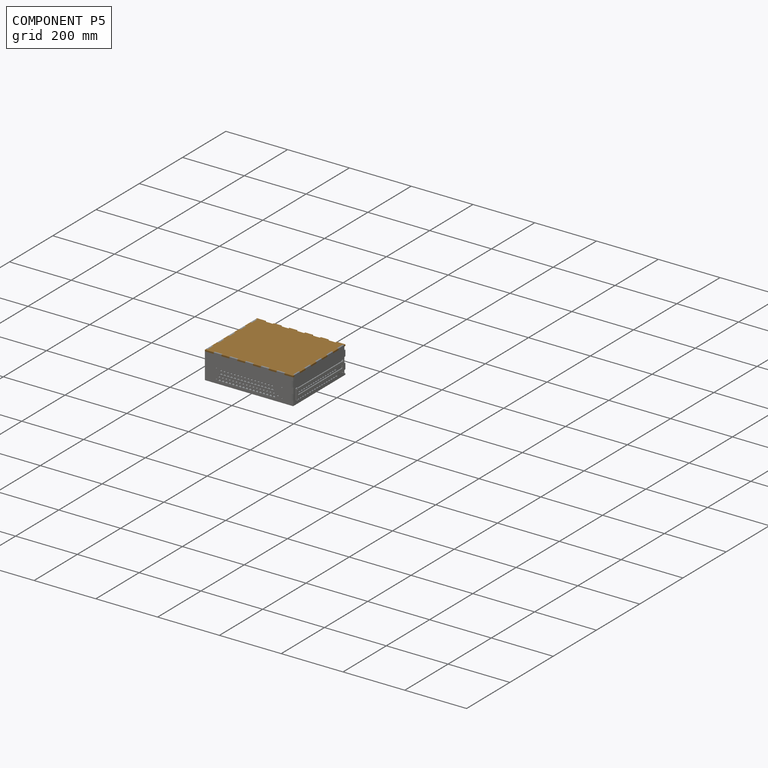
[diagram: component P5 — assembled]
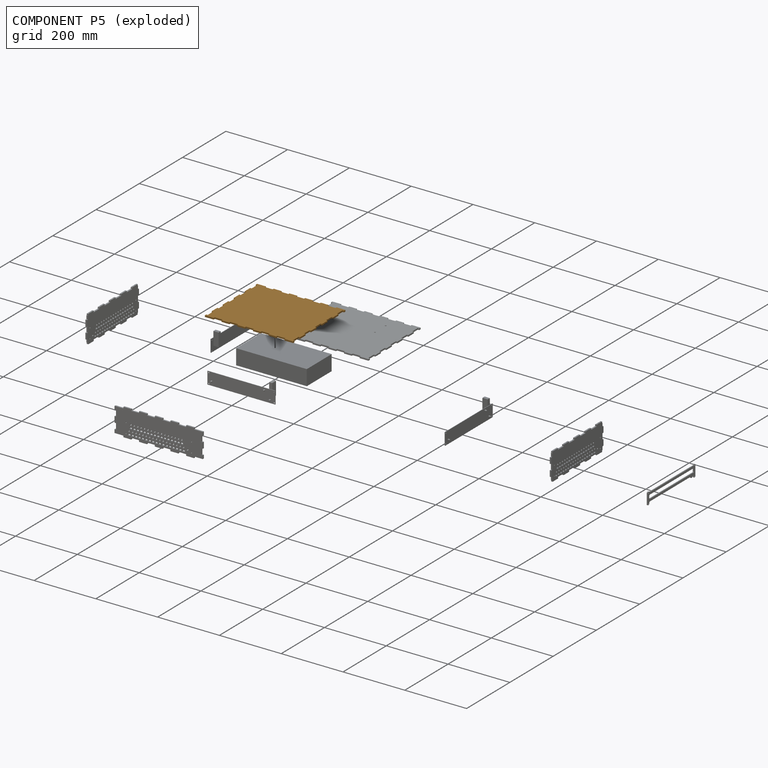
[diagram: component P5 — exploded]
COMPONENT P5 — geometry summary (no construction recipe available for this part):
  bounding box: 285.8 x 241.3 x 4.8 mm
  B-rep topology: 1 solid, 86 faces, 504 edges
  volume: 316859 mm^3 (96% of its bounding box)
  symmetry: 2-fold rotationally symmetric about the x axis; 2-fold rotationally symmetric about the y axis; 2-fold rotationally symmetric about the z axis; mirror-symmetric across its x mid-plane, y mid-plane, z mid-plane
Held by: FASTENED mate "Fastened 8" to P8.
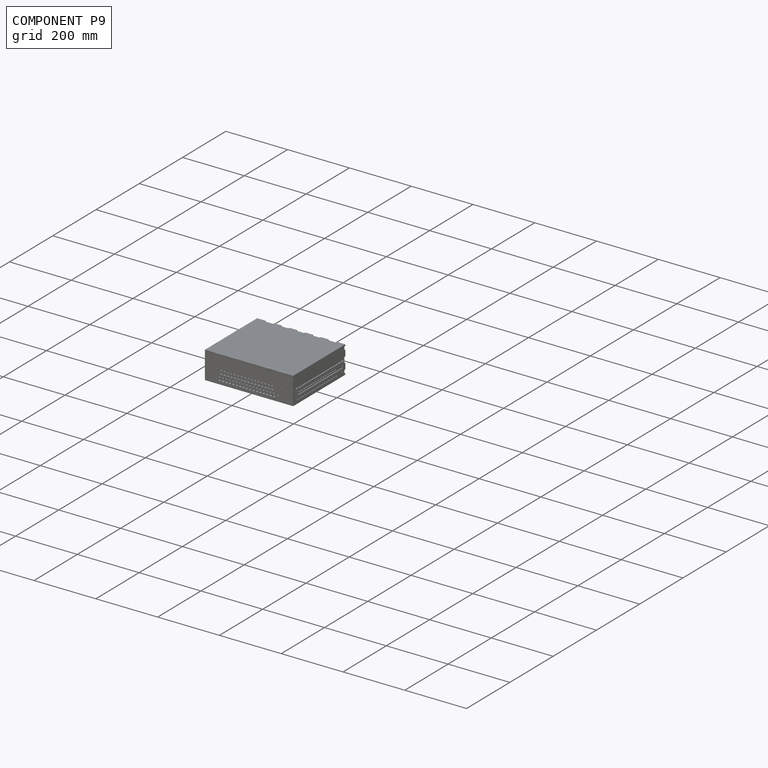
[diagram: component P9 — assembled]
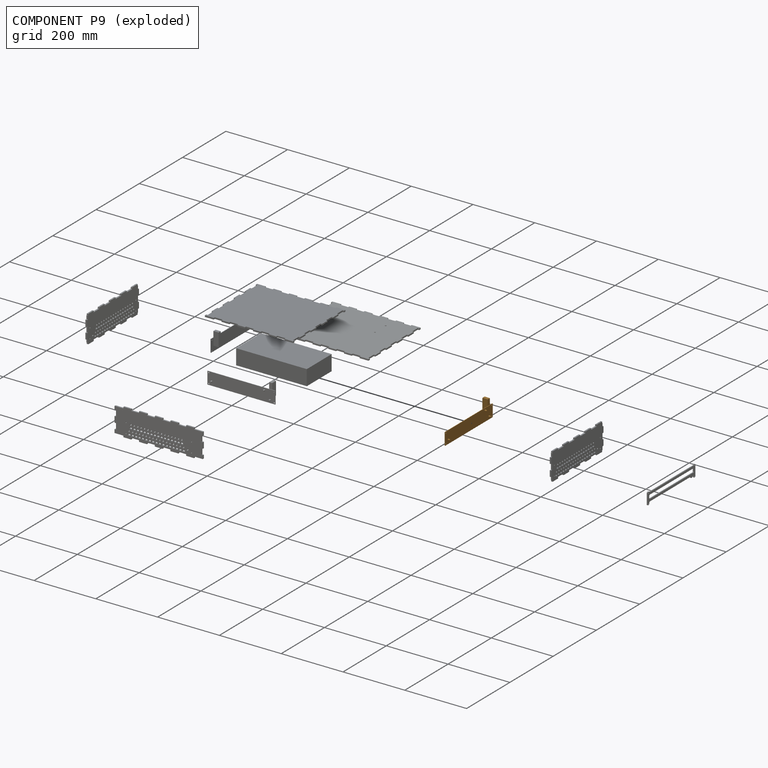
[diagram: component P9 — exploded]
COMPONENT P9 — geometry summary (no construction recipe available for this part):
  bounding box: 220.0 x 59.5 x 24.9 mm
  B-rep topology: 1 solid, 22 faces, 98 edges
  volume: 21492 mm^3 (7% of its bounding box)
Held by: FASTENED mate "Fastened 5" to P1.
